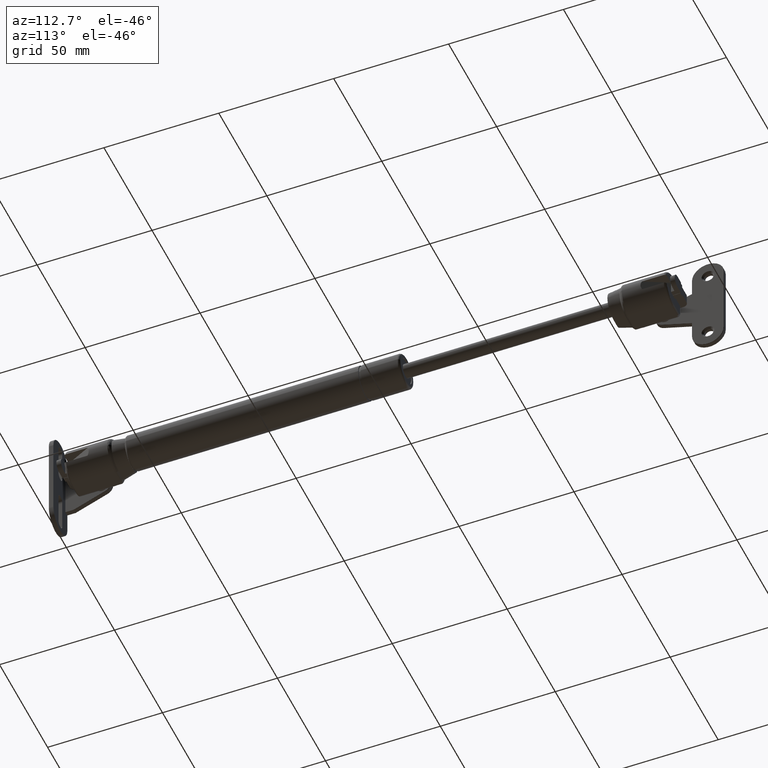
[diagram: clean part render]
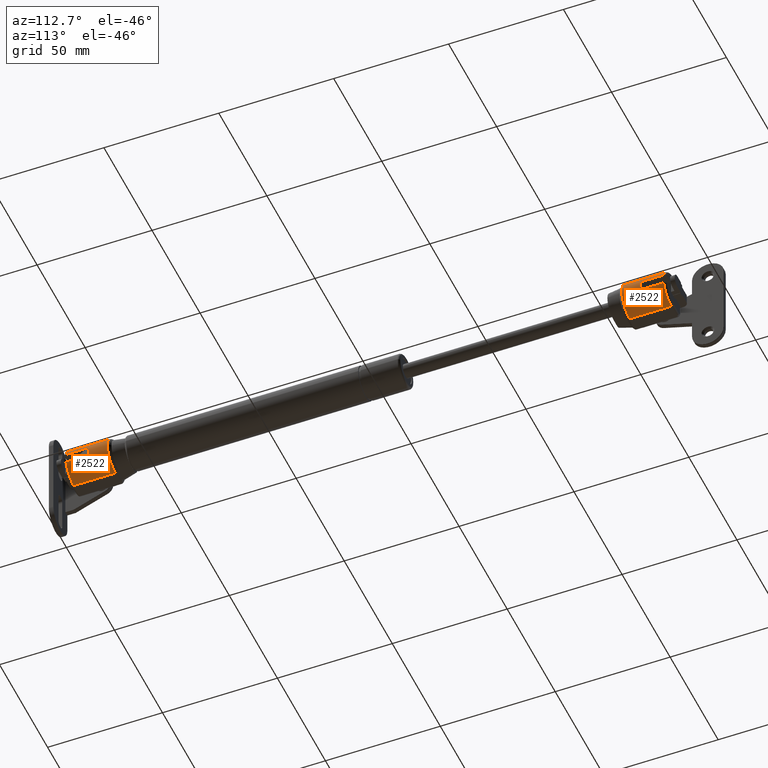
[diagram: same view with one multi-face feature highlighted, each face labeled with its STEP entity id]
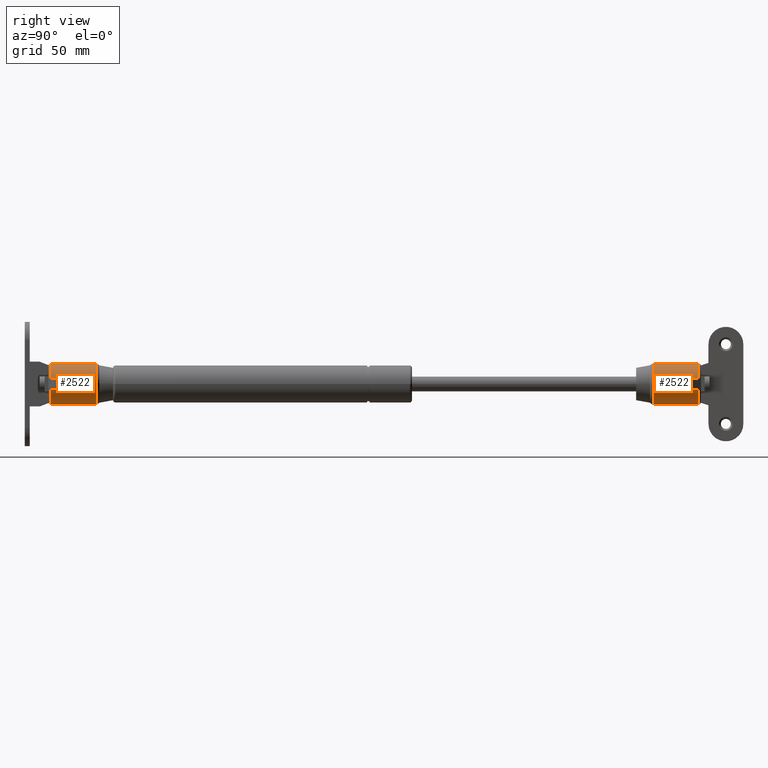
[diagram: same view with one multi-face feature highlighted, each face labeled with its STEP entity id]
A machine part, auxiliary view. The highlighted faces form ONE feature: a constant-radius fillet chain: 2 tangent blend faces with common blend radius 8.25 mm. The faces share edges in the B-rep.
A second angle (right view) of the same feature is appended — it is thin or edge-on in the first view.
Their STEP definitions:
[1] entity #2522 (Cylinder):
#44=B_SPLINE_CURVE_WITH_KNOTS('',3,(#4180,#4181,#4182,#4183,#4184,#4185,
#4186),.UNSPECIFIED.,.F.,.F.,(4,1,1,1,4),(0.,0.318160336331579,0.636320672663158,
0.954481008994737,1.11356117716053),.UNSPECIFIED.);
#46=B_SPLINE_CURVE_WITH_KNOTS('',3,(#4210,#4211,#4212,#4213),
 .UNSPECIFIED.,.F.,.F.,(4,4),(5.98355861253059E-17,0.050531032456681),
 .UNSPECIFIED.);
#48=B_SPLINE_CURVE_WITH_KNOTS('',3,(#4252,#4253,#4254,#4255,#4256,#4257,
#4258),.UNSPECIFIED.,.F.,.F.,(4,1,1,1,4),(0.,0.159080563643538,0.477241690930615,
0.795402818217692,1.11356394550477),.UNSPECIFIED.);
#116=ELLIPSE('',#2742,18.4475608143733,8.25);
#297=FACE_OUTER_BOUND('',#472,.T.);
#472=EDGE_LOOP('',(#1947,#1948,#1949,#1950,#1951,#1952,#1953,#1954,#1955,
#1956));
#677=LINE('',#4347,#858);
#679=LINE('',#4351,#860);
#680=LINE('',#4355,#861);
#681=LINE('',#4359,#862);
#858=VECTOR('',#3200,18.1666666666667);
#860=VECTOR('',#3204,18.1666666666667);
#861=VECTOR('',#3207,9.37450786638754);
#862=VECTOR('',#3210,9.37450786638753);
#1027=CIRCLE('',#2741,8.25);
#1028=CIRCLE('',#2743,8.25);
#1194=VERTEX_POINT('',#4137);
#1196=VERTEX_POINT('',#4170);
#1198=VERTEX_POINT('',#4203);
#1200=VERTEX_POINT('',#4242);
#1208=VERTEX_POINT('',#4346);
#1209=VERTEX_POINT('',#4350);
#1210=VERTEX_POINT('',#4352);
#1211=VERTEX_POINT('',#4354);
#1212=VERTEX_POINT('',#4356);
#1213=VERTEX_POINT('',#4358);
#1466=EDGE_CURVE('',#1194,#1196,#44,.T.);
#1469=EDGE_CURVE('',#1196,#1198,#46,.T.);
#1472=EDGE_CURVE('',#1198,#1200,#48,.T.);
#1485=EDGE_CURVE('',#1208,#1200,#677,.T.);
#1487=EDGE_CURVE('',#1209,#1194,#679,.T.);
#1488=EDGE_CURVE('',#1210,#1209,#1027,.T.);
#1489=EDGE_CURVE('',#1210,#1211,#680,.T.);
#1490=EDGE_CURVE('',#1211,#1212,#116,.T.);
#1491=EDGE_CURVE('',#1212,#1213,#681,.T.);
#1492=EDGE_CURVE('',#1208,#1213,#1028,.T.);
#1947=ORIENTED_EDGE('',*,*,#1472,.F.);
#1948=ORIENTED_EDGE('',*,*,#1469,.F.);
#1949=ORIENTED_EDGE('',*,*,#1466,.F.);
#1950=ORIENTED_EDGE('',*,*,#1487,.F.);
#1951=ORIENTED_EDGE('',*,*,#1488,.F.);
#1952=ORIENTED_EDGE('',*,*,#1489,.T.);
#1953=ORIENTED_EDGE('',*,*,#1490,.T.);
#1954=ORIENTED_EDGE('',*,*,#1491,.T.);
#1955=ORIENTED_EDGE('',*,*,#1492,.F.);
#1956=ORIENTED_EDGE('',*,*,#1485,.T.);
#2434=CYLINDRICAL_SURFACE('',#2740,8.25);
#2522=ADVANCED_FACE('',(#297),#2434,.T.);
#2740=AXIS2_PLACEMENT_3D('',#4349,#3202,#3203);
#2741=AXIS2_PLACEMENT_3D('',#4353,#3205,#3206);
#2742=AXIS2_PLACEMENT_3D('',#4357,#3208,#3209);
#2743=AXIS2_PLACEMENT_3D('',#4360,#3211,#3212);
#3200=DIRECTION('',(0.,-1.,0.));
#3202=DIRECTION('center_axis',(0.,-1.,0.));
#3203=DIRECTION('ref_axis',(1.,0.,0.));
#3204=DIRECTION('',(0.,-1.,0.));
#3205=DIRECTION('center_axis',(0.,1.,0.));
#3206=DIRECTION('ref_axis',(0.603022689155527,0.,-0.797724035217465));
#3207=DIRECTION('',(0.,-1.,0.));
#3208=DIRECTION('center_axis',(-0.894427190999916,-0.447213595499958,0.));
#3209=DIRECTION('ref_axis',(0.447213595499958,-0.894427190999916,0.));
#3210=DIRECTION('',(0.,1.,0.));
#3211=DIRECTION('center_axis',(0.,1.,0.));
#3212=DIRECTION('ref_axis',(0.603022689155527,0.,0.797724035217465));
#4137=CARTESIAN_POINT('',(-0.25,6.83333333333333,-8.25));
#4170=CARTESIAN_POINT('',(7.99499106897824,6.91291568377505,-0.287440902567901));
#4180=CARTESIAN_POINT('Ctrl Pts',(-0.25,6.83333333333334,-8.25));
#4181=CARTESIAN_POINT('Ctrl Pts',(0.95681506884392,6.83333333333334,-8.25));
#4182=CARTESIAN_POINT('Ctrl Pts',(3.36967066675366,6.8392093847769,-7.71184204728332));
#4183=CARTESIAN_POINT('Ctrl Pts',(6.30422156160402,6.86329015619991,-5.44322790718743));
#4184=CARTESIAN_POINT('Ctrl Pts',(7.71329656314398,6.89061915741741,-2.69300004126154));
#4185=CARTESIAN_POINT('Ctrl Pts',(7.97396866625352,6.90745890505309,-0.890450151304917));
#4186=CARTESIAN_POINT('Ctrl Pts',(7.99499106897824,6.91291568377505,-0.287440902567901));
#4203=CARTESIAN_POINT('',(7.99499106897824,6.91291568377505,0.2874409025679));
#4210=CARTESIAN_POINT('Ctrl Pts',(7.99499106897824,6.91291568377505,-0.287440902567902));
#4211=CARTESIAN_POINT('Ctrl Pts',(8.00166873173563,6.9146490026789,-0.095897982599064));
#4212=CARTESIAN_POINT('Ctrl Pts',(8.00166873173563,6.9146490026789,0.0958979825990634));
#4213=CARTESIAN_POINT('Ctrl Pts',(7.99499106897824,6.91291568377505,0.2874409025679));
#4242=CARTESIAN_POINT('',(-0.249999999999997,6.83333333333333,8.25));
#4252=CARTESIAN_POINT('Ctrl Pts',(7.99499106897824,6.91291568377505,0.287440902567901));
#4253=CARTESIAN_POINT('Ctrl Pts',(7.97396861399124,6.90745889148738,0.89045165040278));
#4254=CARTESIAN_POINT('Ctrl Pts',(7.71329780704289,6.8906189109578,2.69302736830615));
#4255=CARTESIAN_POINT('Ctrl Pts',(6.30416948840903,6.86328941239324,5.44329995526924));
#4256=CARTESIAN_POINT('Ctrl Pts',(3.36960163167953,6.83920910998648,7.7118669571224));
#4257=CARTESIAN_POINT('Ctrl Pts',(0.956818069019949,6.83333333333333,8.25));
#4258=CARTESIAN_POINT('Ctrl Pts',(-0.249999999999997,6.83333333333333,8.25));
#4346=CARTESIAN_POINT('',(-0.249999999999998,25.,8.25));
#4347=CARTESIAN_POINT('',(-0.249999999999998,26.,8.25));
#4349=CARTESIAN_POINT('Origin',(-0.249999999999999,26.,-2.22044604925031E-15));
#4350=CARTESIAN_POINT('',(-0.25,25.,-8.25));
#4351=CARTESIAN_POINT('',(-0.25,26.,-8.25));
#4352=CARTESIAN_POINT('',(7.68725393319377,25.,-2.25));
#4353=CARTESIAN_POINT('Origin',(-0.249999999999999,25.,-2.22044604925031E-15));
#4354=CARTESIAN_POINT('',(7.68725393319377,15.6254921336125,-2.25));
#4355=CARTESIAN_POINT('',(7.68725393319377,26.,-2.25));
#4356=CARTESIAN_POINT('',(7.68725393319377,15.6254921336125,2.25));
#4357=CARTESIAN_POINT('Origin',(-0.249999999999999,31.5,-2.22044604925031E-15));
#4358=CARTESIAN_POINT('',(7.68725393319377,25.,2.25));
#4359=CARTESIAN_POINT('',(7.68725393319377,26.,2.25));
#4360=CARTESIAN_POINT('Origin',(-0.249999999999999,25.,-2.22044604925031E-15));
[2] entity #2522 (Cylinder):
#44=B_SPLINE_CURVE_WITH_KNOTS('',3,(#4180,#4181,#4182,#4183,#4184,#4185,
#4186),.UNSPECIFIED.,.F.,.F.,(4,1,1,1,4),(0.,0.318160336331579,0.636320672663158,
0.954481008994737,1.11356117716053),.UNSPECIFIED.);
#46=B_SPLINE_CURVE_WITH_KNOTS('',3,(#4210,#4211,#4212,#4213),
 .UNSPECIFIED.,.F.,.F.,(4,4),(5.98355861253059E-17,0.050531032456681),
 .UNSPECIFIED.);
#48=B_SPLINE_CURVE_WITH_KNOTS('',3,(#4252,#4253,#4254,#4255,#4256,#4257,
#4258),.UNSPECIFIED.,.F.,.F.,(4,1,1,1,4),(0.,0.159080563643538,0.477241690930615,
0.795402818217692,1.11356394550477),.UNSPECIFIED.);
#116=ELLIPSE('',#2742,18.4475608143733,8.25);
#297=FACE_OUTER_BOUND('',#472,.T.);
#472=EDGE_LOOP('',(#1947,#1948,#1949,#1950,#1951,#1952,#1953,#1954,#1955,
#1956));
#677=LINE('',#4347,#858);
#679=LINE('',#4351,#860);
#680=LINE('',#4355,#861);
#681=LINE('',#4359,#862);
#858=VECTOR('',#3200,18.1666666666667);
#860=VECTOR('',#3204,18.1666666666667);
#861=VECTOR('',#3207,9.37450786638754);
#862=VECTOR('',#3210,9.37450786638753);
#1027=CIRCLE('',#2741,8.25);
#1028=CIRCLE('',#2743,8.25);
#1194=VERTEX_POINT('',#4137);
#1196=VERTEX_POINT('',#4170);
#1198=VERTEX_POINT('',#4203);
#1200=VERTEX_POINT('',#4242);
#1208=VERTEX_POINT('',#4346);
#1209=VERTEX_POINT('',#4350);
#1210=VERTEX_POINT('',#4352);
#1211=VERTEX_POINT('',#4354);
#1212=VERTEX_POINT('',#4356);
#1213=VERTEX_POINT('',#4358);
#1466=EDGE_CURVE('',#1194,#1196,#44,.T.);
#1469=EDGE_CURVE('',#1196,#1198,#46,.T.);
#1472=EDGE_CURVE('',#1198,#1200,#48,.T.);
#1485=EDGE_CURVE('',#1208,#1200,#677,.T.);
#1487=EDGE_CURVE('',#1209,#1194,#679,.T.);
#1488=EDGE_CURVE('',#1210,#1209,#1027,.T.);
#1489=EDGE_CURVE('',#1210,#1211,#680,.T.);
#1490=EDGE_CURVE('',#1211,#1212,#116,.T.);
#1491=EDGE_CURVE('',#1212,#1213,#681,.T.);
#1492=EDGE_CURVE('',#1208,#1213,#1028,.T.);
#1947=ORIENTED_EDGE('',*,*,#1472,.F.);
#1948=ORIENTED_EDGE('',*,*,#1469,.F.);
#1949=ORIENTED_EDGE('',*,*,#1466,.F.);
#1950=ORIENTED_EDGE('',*,*,#1487,.F.);
#1951=ORIENTED_EDGE('',*,*,#1488,.F.);
#1952=ORIENTED_EDGE('',*,*,#1489,.T.);
#1953=ORIENTED_EDGE('',*,*,#1490,.T.);
#1954=ORIENTED_EDGE('',*,*,#1491,.T.);
#1955=ORIENTED_EDGE('',*,*,#1492,.F.);
#1956=ORIENTED_EDGE('',*,*,#1485,.T.);
#2434=CYLINDRICAL_SURFACE('',#2740,8.25);
#2522=ADVANCED_FACE('',(#297),#2434,.T.);
#2740=AXIS2_PLACEMENT_3D('',#4349,#3202,#3203);
#2741=AXIS2_PLACEMENT_3D('',#4353,#3205,#3206);
#2742=AXIS2_PLACEMENT_3D('',#4357,#3208,#3209);
#2743=AXIS2_PLACEMENT_3D('',#4360,#3211,#3212);
#3200=DIRECTION('',(0.,-1.,0.));
#3202=DIRECTION('center_axis',(0.,-1.,0.));
#3203=DIRECTION('ref_axis',(1.,0.,0.));
#3204=DIRECTION('',(0.,-1.,0.));
#3205=DIRECTION('center_axis',(0.,1.,0.));
#3206=DIRECTION('ref_axis',(0.603022689155527,0.,-0.797724035217465));
#3207=DIRECTION('',(0.,-1.,0.));
#3208=DIRECTION('center_axis',(-0.894427190999916,-0.447213595499958,0.));
#3209=DIRECTION('ref_axis',(0.447213595499958,-0.894427190999916,0.));
#3210=DIRECTION('',(0.,1.,0.));
#3211=DIRECTION('center_axis',(0.,1.,0.));
#3212=DIRECTION('ref_axis',(0.603022689155527,0.,0.797724035217465));
#4137=CARTESIAN_POINT('',(-0.25,6.83333333333333,-8.25));
#4170=CARTESIAN_POINT('',(7.99499106897824,6.91291568377505,-0.287440902567901));
#4180=CARTESIAN_POINT('Ctrl Pts',(-0.25,6.83333333333334,-8.25));
#4181=CARTESIAN_POINT('Ctrl Pts',(0.95681506884392,6.83333333333334,-8.25));
#4182=CARTESIAN_POINT('Ctrl Pts',(3.36967066675366,6.8392093847769,-7.71184204728332));
#4183=CARTESIAN_POINT('Ctrl Pts',(6.30422156160402,6.86329015619991,-5.44322790718743));
#4184=CARTESIAN_POINT('Ctrl Pts',(7.71329656314398,6.89061915741741,-2.69300004126154));
#4185=CARTESIAN_POINT('Ctrl Pts',(7.97396866625352,6.90745890505309,-0.890450151304917));
#4186=CARTESIAN_POINT('Ctrl Pts',(7.99499106897824,6.91291568377505,-0.287440902567901));
#4203=CARTESIAN_POINT('',(7.99499106897824,6.91291568377505,0.2874409025679));
#4210=CARTESIAN_POINT('Ctrl Pts',(7.99499106897824,6.91291568377505,-0.287440902567902));
#4211=CARTESIAN_POINT('Ctrl Pts',(8.00166873173563,6.9146490026789,-0.095897982599064));
#4212=CARTESIAN_POINT('Ctrl Pts',(8.00166873173563,6.9146490026789,0.0958979825990634));
#4213=CARTESIAN_POINT('Ctrl Pts',(7.99499106897824,6.91291568377505,0.2874409025679));
#4242=CARTESIAN_POINT('',(-0.249999999999997,6.83333333333333,8.25));
#4252=CARTESIAN_POINT('Ctrl Pts',(7.99499106897824,6.91291568377505,0.287440902567901));
#4253=CARTESIAN_POINT('Ctrl Pts',(7.97396861399124,6.90745889148738,0.89045165040278));
#4254=CARTESIAN_POINT('Ctrl Pts',(7.71329780704289,6.8906189109578,2.69302736830615));
#4255=CARTESIAN_POINT('Ctrl Pts',(6.30416948840903,6.86328941239324,5.44329995526924));
#4256=CARTESIAN_POINT('Ctrl Pts',(3.36960163167953,6.83920910998648,7.7118669571224));
#4257=CARTESIAN_POINT('Ctrl Pts',(0.956818069019949,6.83333333333333,8.25));
#4258=CARTESIAN_POINT('Ctrl Pts',(-0.249999999999997,6.83333333333333,8.25));
#4346=CARTESIAN_POINT('',(-0.249999999999998,25.,8.25));
#4347=CARTESIAN_POINT('',(-0.249999999999998,26.,8.25));
#4349=CARTESIAN_POINT('Origin',(-0.249999999999999,26.,-2.22044604925031E-15));
#4350=CARTESIAN_POINT('',(-0.25,25.,-8.25));
#4351=CARTESIAN_POINT('',(-0.25,26.,-8.25));
#4352=CARTESIAN_POINT('',(7.68725393319377,25.,-2.25));
#4353=CARTESIAN_POINT('Origin',(-0.249999999999999,25.,-2.22044604925031E-15));
#4354=CARTESIAN_POINT('',(7.68725393319377,15.6254921336125,-2.25));
#4355=CARTESIAN_POINT('',(7.68725393319377,26.,-2.25));
#4356=CARTESIAN_POINT('',(7.68725393319377,15.6254921336125,2.25));
#4357=CARTESIAN_POINT('Origin',(-0.249999999999999,31.5,-2.22044604925031E-15));
#4358=CARTESIAN_POINT('',(7.68725393319377,25.,2.25));
#4359=CARTESIAN_POINT('',(7.68725393319377,26.,2.25));
#4360=CARTESIAN_POINT('Origin',(-0.249999999999999,25.,-2.22044604925031E-15));